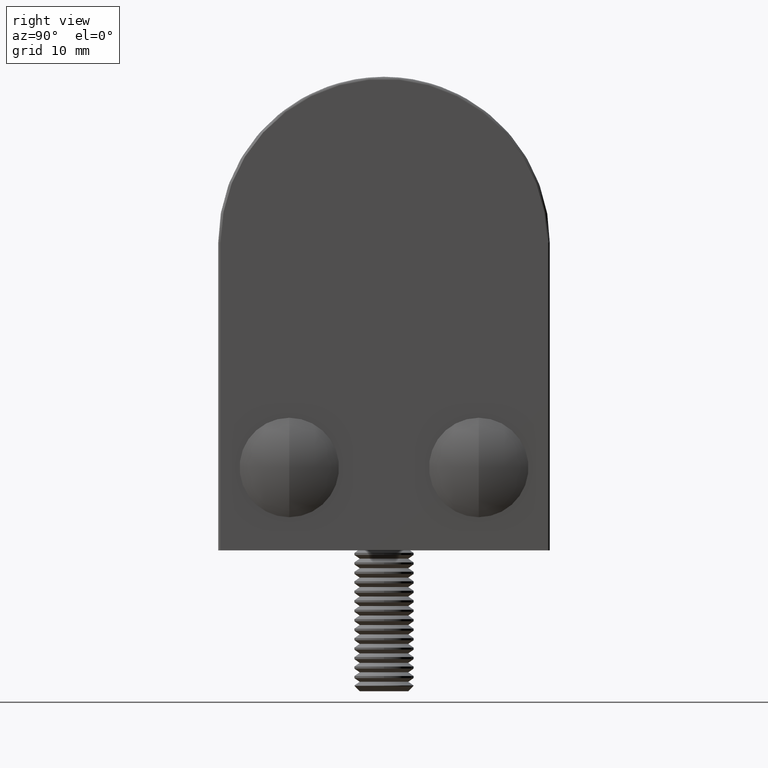
[diagram: clean part render]
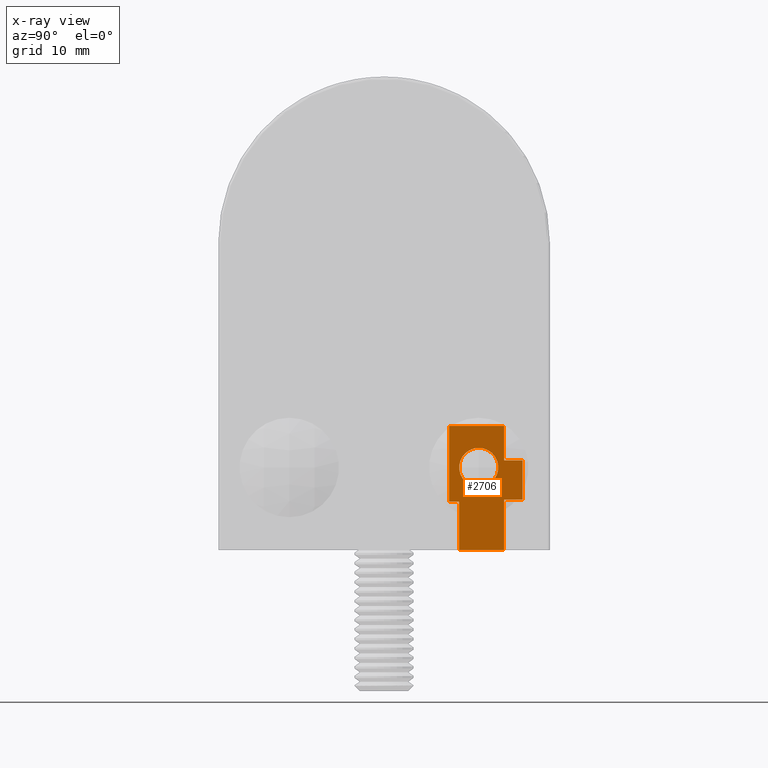
[diagram: x-ray — body ghosted, one internal face saturated and labeled with its STEP entity id]
A machine part, right view, then the same camera in x-ray: the body is ghosted and one INTERNAL B-rep face — a face not visible from any outside direction — is saturated and labeled: STEP entity #2706.
In plain terms, the highlighted planar face has unit normal (1, 0, 0).
Its self-contained STEP definition (entity closure, byte-faithful):
#151 = ORIENTED_EDGE ( 'NONE', *, *, #44802, .T. ) ;
#660 = CARTESIAN_POINT ( 'NONE',  ( 13.29999999999999900, 6.349999999999997900, 1.599999999999995400 ) ) ;
#1691 = VERTEX_POINT ( 'NONE', #36031 ) ;
#1823 = VECTOR ( 'NONE', #45872, 1000.000000000000000 ) ;
#2273 = ORIENTED_EDGE ( 'NONE', *, *, #32931, .F. ) ;
#2466 = CARTESIAN_POINT ( 'NONE',  ( 13.29999999999999900, 6.349999999999997900, 4.099999999999993400 ) ) ;
#2706 = ADVANCED_FACE ( 'NONE', ( #7951, #5503 ), #18659, .T. ) ;
#3356 = ORIENTED_EDGE ( 'NONE', *, *, #23217, .T. ) ;
#4154 = ORIENTED_EDGE ( 'NONE', *, *, #13758, .T. ) ;
#4232 = CARTESIAN_POINT ( 'NONE',  ( 13.29999999999999900, 5.499999999999999100, 10.49999999999999600 ) ) ;
#4568 = LINE ( 'NONE', #23093, #45084 ) ;
#5503 = FACE_OUTER_BOUND ( 'NONE', #21243, .T. ) ;
#5524 = ORIENTED_EDGE ( 'NONE', *, *, #21528, .T. ) ;
#5535 = LINE ( 'NONE', #34640, #26314 ) ;
#5660 = VERTEX_POINT ( 'NONE', #32526 ) ;
#5943 = EDGE_CURVE ( 'NONE', #42103, #40916, #41804, .T. ) ;
#6136 = CIRCLE ( 'NONE', #49449, 1.649999999999998600 ) ;
#6195 = VERTEX_POINT ( 'NONE', #26397 ) ;
#6437 = EDGE_CURVE ( 'NONE', #40916, #45798, #32547, .T. ) ;
#6614 = EDGE_LOOP ( 'NONE', ( #2273, #43781 ) ) ;
#6723 = LINE ( 'NONE', #4232, #48482 ) ;
#7871 = CARTESIAN_POINT ( 'NONE',  ( 13.29999999999999900, 10.14999999999999900, 10.49999999999999600 ) ) ;
#7951 = FACE_BOUND ( 'NONE', #6614, .T. ) ;
#7952 = ORIENTED_EDGE ( 'NONE', *, *, #18872, .T. ) ;
#8212 = DIRECTION ( 'NONE',  ( -0.0000000000000000000, 1.000000000000000000, -0.0000000000000000000 ) ) ;
#9026 = CARTESIAN_POINT ( 'NONE',  ( 13.29999999999999900, 10.14999999999999900, 10.49999999999999600 ) ) ;
#10580 = CARTESIAN_POINT ( 'NONE',  ( 13.29999999999999900, 5.499999999999998200, 4.099999999999993400 ) ) ;
#10762 = VERTEX_POINT ( 'NONE', #33402 ) ;
#11215 = CARTESIAN_POINT ( 'NONE',  ( 13.29999999999999900, 10.14999999999999900, 4.299999999999996300 ) ) ;
#11511 = DIRECTION ( 'NONE',  ( 0.0000000000000000000, 0.0000000000000000000, -1.000000000000000000 ) ) ;
#11678 = VECTOR ( 'NONE', #8212, 1000.000000000000000 ) ;
#12273 = DIRECTION ( 'NONE',  ( -0.0000000000000000000, -0.0000000000000000000, 1.000000000000000000 ) ) ;
#12936 = CARTESIAN_POINT ( 'NONE',  ( 13.29999999999999900, 5.499999999999999100, 4.099999999999997000 ) ) ;
#13337 = AXIS2_PLACEMENT_3D ( 'NONE', #27101, #23475, #11511 ) ;
#13758 = EDGE_CURVE ( 'NONE', #30170, #42103, #4568, .T. ) ;
#14623 = ORIENTED_EDGE ( 'NONE', *, *, #23148, .T. ) ;
#15048 = DIRECTION ( 'NONE',  ( 0.0000000000000000000, 0.0000000000000000000, -1.000000000000000000 ) ) ;
#15175 = AXIS2_PLACEMENT_3D ( 'NONE', #46351, #49967, #15048 ) ;
#16344 = LINE ( 'NONE', #22317, #40341 ) ;
#16636 = LINE ( 'NONE', #9026, #46116 ) ;
#16718 = ORIENTED_EDGE ( 'NONE', *, *, #5943, .T. ) ;
#18659 = PLANE ( 'NONE',  #13337 ) ;
#18872 = EDGE_CURVE ( 'NONE', #28910, #6195, #39458, .T. ) ;
#20299 = DIRECTION ( 'NONE',  ( 0.0000000000000000000, 0.0000000000000000000, -1.000000000000000000 ) ) ;
#21121 = DIRECTION ( 'NONE',  ( 0.0000000000000000000, 1.000000000000000000, -4.081702296416020700E-015 ) ) ;
#21243 = EDGE_LOOP ( 'NONE', ( #14623, #39938, #4154, #16718, #28320, #3356, #7952, #46475, #5524, #151, #39188 ) ) ;
#21528 = EDGE_CURVE ( 'NONE', #40425, #5660, #16636, .T. ) ;
#22317 = CARTESIAN_POINT ( 'NONE',  ( 13.29999999999999900, 6.349999999999997900, 4.099999999999993400 ) ) ;
#22607 = CARTESIAN_POINT ( 'NONE',  ( 13.29999999999999900, 11.70000000000000300, 4.299999999999996300 ) ) ;
#23093 = CARTESIAN_POINT ( 'NONE',  ( 13.29999999999999900, 6.350000000000008500, -1.914145517036476900E-015 ) ) ;
#23148 = EDGE_CURVE ( 'NONE', #1691, #45349, #40518, .T. ) ;
#23217 = EDGE_CURVE ( 'NONE', #45798, #28910, #5535, .T. ) ;
#23439 = DIRECTION ( 'NONE',  ( 0.0000000000000000000, 1.000000000000000000, 1.667627088515426900E-017 ) ) ;
#23475 = DIRECTION ( 'NONE',  ( 1.000000000000000000, -0.0000000000000000000, 0.0000000000000000000 ) ) ;
#23837 = EDGE_CURVE ( 'NONE', #39163, #1691, #26266, .T. ) ;
#24681 = CARTESIAN_POINT ( 'NONE',  ( 13.29999999999999900, 10.14999999999999900, 4.299999999999996300 ) ) ;
#25963 = LINE ( 'NONE', #43376, #46314 ) ;
#26266 = LINE ( 'NONE', #12936, #35494 ) ;
#26314 = VECTOR ( 'NONE', #27103, 1000.000000000000000 ) ;
#26397 = CARTESIAN_POINT ( 'NONE',  ( 13.29999999999999900, 10.14999999999999900, 7.599999999999997000 ) ) ;
#27101 = CARTESIAN_POINT ( 'NONE',  ( 13.29999999999999900, 0.0000000000000000000, 0.0000000000000000000 ) ) ;
#27103 = DIRECTION ( 'NONE',  ( -0.0000000000000000000, -0.0000000000000000000, 1.000000000000000000 ) ) ;
#27424 = CARTESIAN_POINT ( 'NONE',  ( 13.29999999999999900, 10.14999999999999900, 7.599999999999997000 ) ) ;
#28320 = ORIENTED_EDGE ( 'NONE', *, *, #6437, .T. ) ;
#28910 = VERTEX_POINT ( 'NONE', #41192 ) ;
#29015 = DIRECTION ( 'NONE',  ( 0.0000000000000000000, -1.000000000000000000, 0.0000000000000000000 ) ) ;
#30063 = EDGE_CURVE ( 'NONE', #32987, #10762, #38988, .T. ) ;
#30170 = VERTEX_POINT ( 'NONE', #39466 ) ;
#32040 = VECTOR ( 'NONE', #46896, 1000.000000000000000 ) ;
#32526 = CARTESIAN_POINT ( 'NONE',  ( 13.29999999999999900, 5.499999999999999100, 10.49999999999999600 ) ) ;
#32547 = LINE ( 'NONE', #39402, #11678 ) ;
#32931 = EDGE_CURVE ( 'NONE', #10762, #32987, #6136, .T. ) ;
#32987 = VERTEX_POINT ( 'NONE', #39925 ) ;
#33402 = CARTESIAN_POINT ( 'NONE',  ( 13.29999999999999900, 8.000000000000000000, 5.349999999999998800 ) ) ;
#34640 = CARTESIAN_POINT ( 'NONE',  ( 13.29999999999999900, 11.70000000000000300, 7.599999999999997000 ) ) ;
#34871 = DIRECTION ( 'NONE',  ( -0.0000000000000000000, -0.0000000000000000000, 1.000000000000000000 ) ) ;
#35494 = VECTOR ( 'NONE', #21121, 1000.000000000000000 ) ;
#36031 = CARTESIAN_POINT ( 'NONE',  ( 13.29999999999999900, 6.349999999999997900, 4.099999999999993400 ) ) ;
#36105 = DIRECTION ( 'NONE',  ( 0.0000000000000000000, 0.0000000000000000000, -1.000000000000000000 ) ) ;
#38988 = CIRCLE ( 'NONE', #15175, 1.649999999999998600 ) ;
#39163 = VERTEX_POINT ( 'NONE', #10580 ) ;
#39188 = ORIENTED_EDGE ( 'NONE', *, *, #23837, .T. ) ;
#39402 = CARTESIAN_POINT ( 'NONE',  ( 13.29999999999999900, 11.70000000000000300, 4.299999999999996300 ) ) ;
#39458 = LINE ( 'NONE', #27424, #32040 ) ;
#39466 = CARTESIAN_POINT ( 'NONE',  ( 13.29999999999999900, 6.350000000000008500, -1.914145517036476900E-015 ) ) ;
#39925 = CARTESIAN_POINT ( 'NONE',  ( 13.29999999999999900, 8.000000000000000000, 8.649999999999996800 ) ) ;
#39938 = ORIENTED_EDGE ( 'NONE', *, *, #46796, .T. ) ;
#40341 = VECTOR ( 'NONE', #46408, 1000.000000000000000 ) ;
#40425 = VERTEX_POINT ( 'NONE', #7871 ) ;
#40518 = LINE ( 'NONE', #2466, #1823 ) ;
#40916 = VERTEX_POINT ( 'NONE', #24681 ) ;
#41192 = CARTESIAN_POINT ( 'NONE',  ( 13.29999999999999900, 11.70000000000000300, 7.599999999999997000 ) ) ;
#41804 = LINE ( 'NONE', #11215, #43683 ) ;
#42103 = VERTEX_POINT ( 'NONE', #43320 ) ;
#43320 = CARTESIAN_POINT ( 'NONE',  ( 13.29999999999999900, 10.14999999999999900, -1.850775687672890800E-015 ) ) ;
#43376 = CARTESIAN_POINT ( 'NONE',  ( 13.29999999999999900, 10.14999999999999900, 10.49999999999999600 ) ) ;
#43683 = VECTOR ( 'NONE', #34871, 1000.000000000000000 ) ;
#43781 = ORIENTED_EDGE ( 'NONE', *, *, #30063, .F. ) ;
#43891 = DIRECTION ( 'NONE',  ( 1.000000000000000000, -0.0000000000000000000, -0.0000000000000000000 ) ) ;
#44802 = EDGE_CURVE ( 'NONE', #5660, #39163, #6723, .T. ) ;
#45084 = VECTOR ( 'NONE', #23439, 1000.000000000000000 ) ;
#45349 = VERTEX_POINT ( 'NONE', #660 ) ;
#45798 = VERTEX_POINT ( 'NONE', #22607 ) ;
#45872 = DIRECTION ( 'NONE',  ( 0.0000000000000000000, 2.538619720941671800E-015, -1.000000000000000000 ) ) ;
#46116 = VECTOR ( 'NONE', #29015, 1000.000000000000000 ) ;
#46314 = VECTOR ( 'NONE', #12273, 1000.000000000000000 ) ;
#46351 = CARTESIAN_POINT ( 'NONE',  ( 13.29999999999999900, 8.000000000000000000, 6.999999999999997300 ) ) ;
#46408 = DIRECTION ( 'NONE',  ( 0.0000000000000000000, 2.538619720941671800E-015, -1.000000000000000000 ) ) ;
#46475 = ORIENTED_EDGE ( 'NONE', *, *, #49452, .T. ) ;
#46796 = EDGE_CURVE ( 'NONE', #45349, #30170, #16344, .T. ) ;
#46896 = DIRECTION ( 'NONE',  ( -0.0000000000000000000, -1.000000000000000000, -0.0000000000000000000 ) ) ;
#48028 = CARTESIAN_POINT ( 'NONE',  ( 13.29999999999999900, 8.000000000000000000, 6.999999999999997300 ) ) ;
#48482 = VECTOR ( 'NONE', #36105, 1000.000000000000000 ) ;
#49449 = AXIS2_PLACEMENT_3D ( 'NONE', #48028, #43891, #20299 ) ;
#49452 = EDGE_CURVE ( 'NONE', #6195, #40425, #25963, .T. ) ;
#49967 = DIRECTION ( 'NONE',  ( 1.000000000000000000, -0.0000000000000000000, -0.0000000000000000000 ) ) ;